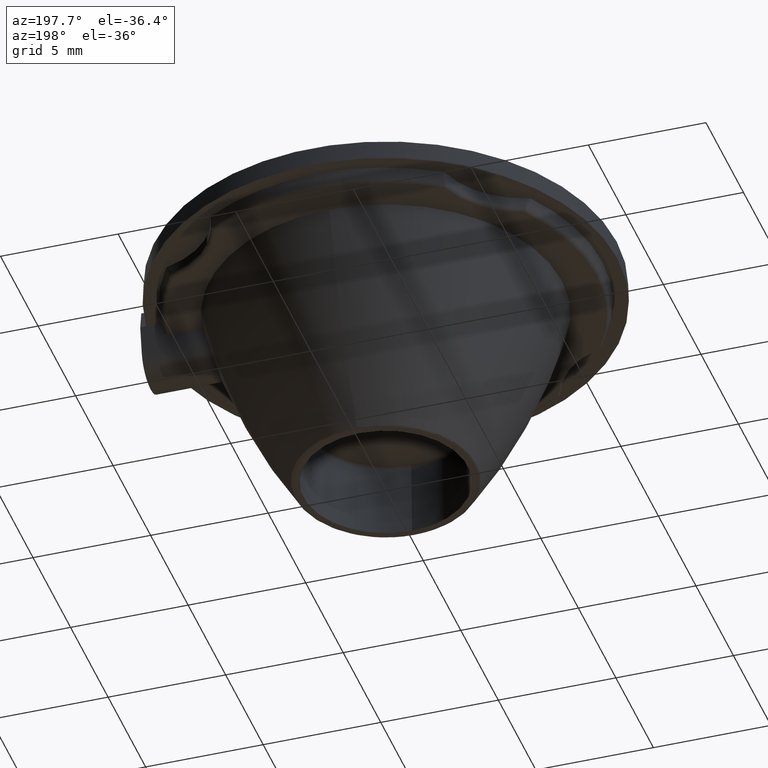
[diagram: clean part render]
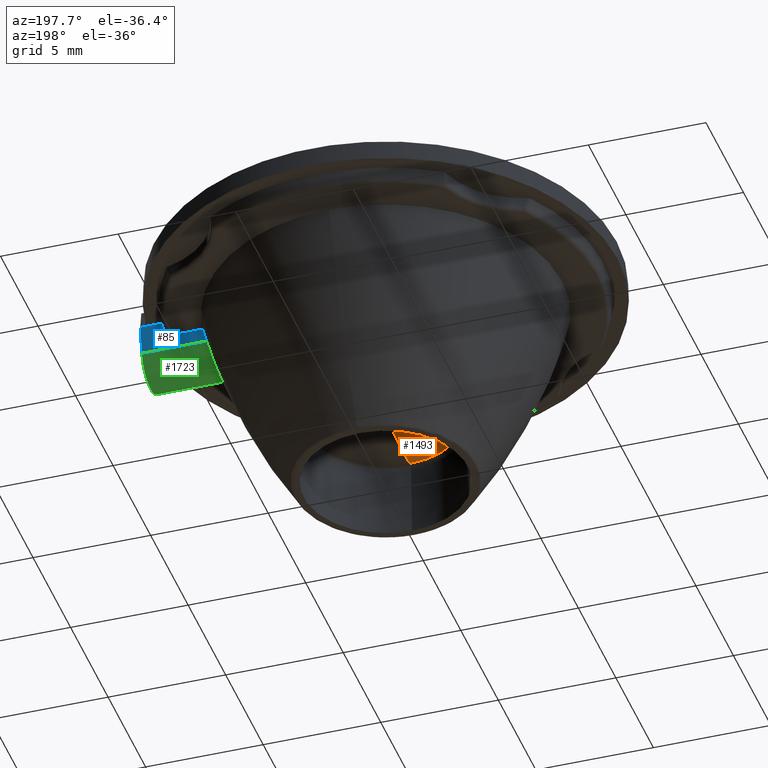
[diagram: same view with three faces highlighted in distinct colors, each labeled with its STEP entity id]
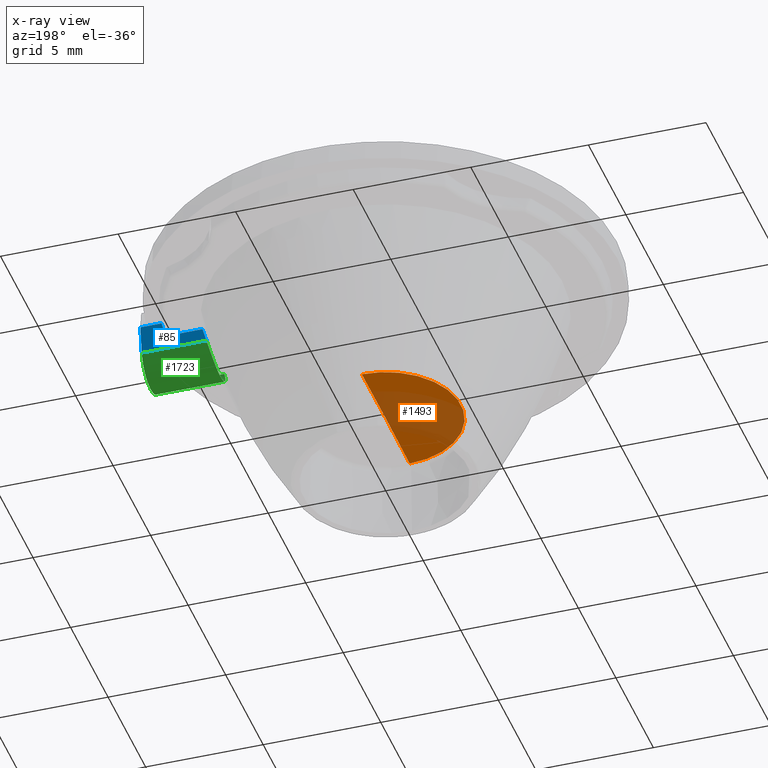
[diagram: x-ray of the same camera — body ghosted, the three highlighted faces saturated]
A machine part, auxiliary view with three faces highlighted in distinct colors.
The next image is the same camera in x-ray (body ghosted, the three faces saturated) — at least one of them is partly hidden behind the body in this view.
Their STEP definitions:

[orange] entity #1493 — the highlighted conical surface has half-angle 89.539 deg.
#5 = VECTOR ( 'NONE', #1677, 999.9999999999998863 ) ;
#27 = DIRECTION ( 'NONE',  ( 2.303001071113049889E-32, 4.680303619844524597E-17, -1.000000000000000000 ) ) ;
#41 = EDGE_CURVE ( 'NONE', #1244, #1558, #1430, .T. ) ;
#58 = AXIS2_PLACEMENT_3D ( 'NONE', #869, #285, #743 ) ;
#285 = DIRECTION ( 'NONE',  ( 0.0000000000000000000, 6.746244544747080605E-19, -1.000000000000000000 ) ) ;
#305 = DIRECTION ( 'NONE',  ( 0.0000000000000000000, -1.000000000000000000, 0.0000000000000000000 ) ) ;
#317 = CARTESIAN_POINT ( 'NONE',  ( 0.0000000000000000000, -3.339391049649804403E-18, 4.950000000000000178 ) ) ;
#374 = CARTESIAN_POINT ( 'NONE',  ( 4.150587849886201446E-16, -3.389212181647804467, 4.922731802737126294 ) ) ;
#417 = CONICAL_SURFACE ( 'NONE', #58, 3.389212181647804467, 1.562750914629971843 ) ;
#537 = VERTEX_POINT ( 'NONE', #1339 ) ;
#601 = EDGE_CURVE ( 'NONE', #1244, #537, #931, .T. ) ;
#743 = DIRECTION ( 'NONE',  ( 0.0000000000000000000, 1.000000000000000000, 0.0000000000000000000 ) ) ;
#827 = ORIENTED_EDGE ( 'NONE', *, *, #1625, .T. ) ;
#841 = EDGE_LOOP ( 'NONE', ( #1850, #1603, #827 ) ) ;
#869 = CARTESIAN_POINT ( 'NONE',  ( 0.0000000000000000000, -3.320995256946829210E-18, 4.922731802737126294 ) ) ;
#931 = LINE ( 'NONE', #1519, #5 ) ;
#974 = DIRECTION ( 'NONE',  ( 1.224607164489900314E-16, -0.9999676358461229153, -0.008045325370418403288 ) ) ;
#1217 = CARTESIAN_POINT ( 'NONE',  ( 0.0000000000000000000, -3.322035120012010268E-18, 4.924273198188008571 ) ) ;
#1244 = VERTEX_POINT ( 'NONE', #317 ) ;
#1339 = CARTESIAN_POINT ( 'NONE',  ( 0.0000000000000000000, 3.197629430925267524, 4.924273198188008571 ) ) ;
#1378 = AXIS2_PLACEMENT_3D ( 'NONE', #1217, #27, #305 ) ;
#1430 = LINE ( 'NONE', #374, #1696 ) ;
#1493 = ADVANCED_FACE ( 'NONE', ( #1604 ), #417, .F. ) ;
#1519 = CARTESIAN_POINT ( 'NONE',  ( 0.0000000000000000000, 3.389212181647804467, 4.922731802737126294 ) ) ;
#1558 = VERTEX_POINT ( 'NONE', #1922 ) ;
#1603 = ORIENTED_EDGE ( 'NONE', *, *, #41, .T. ) ;
#1604 = FACE_OUTER_BOUND ( 'NONE', #841, .T. ) ;
#1625 = EDGE_CURVE ( 'NONE', #1558, #537, #1924, .T. ) ;
#1677 = DIRECTION ( 'NONE',  ( 0.0000000000000000000, 0.9999676358461229153, -0.008045325370418403288 ) ) ;
#1696 = VECTOR ( 'NONE', #974, 999.9999999999998863 ) ;
#1850 = ORIENTED_EDGE ( 'NONE', *, *, #601, .F. ) ;
#1922 = CARTESIAN_POINT ( 'NONE',  ( 3.915966647442046551E-16, -3.197629430925304383, 4.924273198188008571 ) ) ;
#1924 = CIRCLE ( 'NONE', #1378, 3.197629430925219562 ) ;

[blue] entity #85 — the highlighted planar face has unit normal (0, -0.9848, 0.1736).
#39 = VERTEX_POINT ( 'NONE', #530 ) ;
#85 = ADVANCED_FACE ( 'NONE', ( #1184 ), #1316, .F. ) ;
#98 = AXIS2_PLACEMENT_3D ( 'NONE', #1025, #1624, #742 ) ;
#111 = LINE ( 'NONE', #1302, #475 ) ;
#114 = CARTESIAN_POINT ( 'NONE',  ( 8.974102964655450876, 1.298905210407079514, 10.30593292541605877 ) ) ;
#129 = DIRECTION ( 'NONE',  ( -1.000000000000000000, -0.0000000000000000000, -0.0000000000000000000 ) ) ;
#153 = CARTESIAN_POINT ( 'NONE',  ( 10.00000000000000000, 1.386022565935927320, 10.80000000000000426 ) ) ;
#166 = CARTESIAN_POINT ( 'NONE',  ( 7.243942455039078965, 1.181769303614650157, 9.641622186799693850 ) ) ;
#200 = LINE ( 'NONE', #642, #502 ) ;
#210 = DIRECTION ( 'NONE',  ( -1.000000000000000000, -0.0000000000000000000, -0.0000000000000000000 ) ) ;
#226 = B_SPLINE_CURVE_WITH_KNOTS ( 'NONE', 3,
 ( #867, #577, #311, #910, #114, #1762 ),
 .UNSPECIFIED., .F., .F.,
 ( 4, 2, 4 ),
 ( 0.0000000000000000000, 0.0001307121196724513696, 0.0002614242393449027393 ),
 .UNSPECIFIED. ) ;
#254 = ORIENTED_EDGE ( 'NONE', *, *, #1906, .F. ) ;
#273 = VERTEX_POINT ( 'NONE', #1395 ) ;
#311 = CARTESIAN_POINT ( 'NONE',  ( 8.880242442453390339, 1.282769764489593234, 10.21442426433278783 ) ) ;
#313 = CARTESIAN_POINT ( 'NONE',  ( 8.793056442597512401, 1.280226377510851776, 10.20000000000000107 ) ) ;
#327 = EDGE_CURVE ( 'NONE', #1750, #39, #226, .T. ) ;
#358 = ORIENTED_EDGE ( 'NONE', *, *, #593, .T. ) ;
#360 = VERTEX_POINT ( 'NONE', #153 ) ;
#412 = EDGE_CURVE ( 'NONE', #273, #1253, #584, .T. ) ;
#464 = CARTESIAN_POINT ( 'NONE',  ( 9.094995406635254298, 1.386022565935927320, 10.80000000000000071 ) ) ;
#475 = VECTOR ( 'NONE', #828, 1000.000000000000114 ) ;
#492 = CARTESIAN_POINT ( 'NONE',  ( 7.292879793850644887, 1.214505210951699388, 9.827276742928997777 ) ) ;
#502 = VECTOR ( 'NONE', #801, 1000.000000000000000 ) ;
#523 = EDGE_LOOP ( 'NONE', ( #833, #254, #358, #583, #1882, #1586, #1115, #526 ) ) ;
#526 = ORIENTED_EDGE ( 'NONE', *, *, #752, .F. ) ;
#530 = CARTESIAN_POINT ( 'NONE',  ( 8.984472699645671412, 1.306364417497988706, 10.34823619097949710 ) ) ;
#558 = EDGE_CURVE ( 'NONE', #1620, #39, #1817, .T. ) ;
#565 = VERTEX_POINT ( 'NONE', #1206 ) ;
#577 = CARTESIAN_POINT ( 'NONE',  ( 8.837243274091337142, 1.280226377510851554, 10.19999999999999929 ) ) ;
#583 = ORIENTED_EDGE ( 'NONE', *, *, #327, .T. ) ;
#584 = LINE ( 'NONE', #617, #979 ) ;
#593 = EDGE_CURVE ( 'NONE', #1120, #1750, #200, .T. ) ;
#617 = CARTESIAN_POINT ( 'NONE',  ( 10.00000000000000000, 1.181769303614649935, 9.641622186799692074 ) ) ;
#629 = CARTESIAN_POINT ( 'NONE',  ( 9.094995406635254298, 1.386022565935927320, 10.80000000000000071 ) ) ;
#636 = CARTESIAN_POINT ( 'NONE',  ( 7.385107164020463522, 1.280226377510851776, 10.20000000000000107 ) ) ;
#642 = CARTESIAN_POINT ( 'NONE',  ( 10.00000000000000000, 1.280226377510851776, 10.20000000000000107 ) ) ;
#674 = CARTESIAN_POINT ( 'NONE',  ( 10.00000000000000000, 1.386022565935927320, 10.80000000000000426 ) ) ;
#742 = DIRECTION ( 'NONE',  ( 0.0000000000000000000, -0.1736481776669238641, -0.9848077530122092416 ) ) ;
#752 = EDGE_CURVE ( 'NONE', #273, #360, #111, .T. ) ;
#801 = DIRECTION ( 'NONE',  ( 1.000000000000000000, 0.0000000000000000000, 0.0000000000000000000 ) ) ;
#828 = DIRECTION ( 'NONE',  ( -0.0000000000000000000, 0.1736481776669238641, 0.9848077530122092416 ) ) ;
#833 = ORIENTED_EDGE ( 'NONE', *, *, #412, .T. ) ;
#867 = CARTESIAN_POINT ( 'NONE',  ( 8.793056442597512401, 1.280226377510851776, 10.20000000000000107 ) ) ;
#876 = CARTESIAN_POINT ( 'NONE',  ( 9.058222194534280902, 1.359467020578220442, 10.64939601840280226 ) ) ;
#910 = CARTESIAN_POINT ( 'NONE',  ( 8.949632730319621032, 1.292233984017415516, 10.26809852047780147 ) ) ;
#915 = CARTESIAN_POINT ( 'NONE',  ( 7.243942455039078965, 1.181769303614650157, 9.641622186799693850 ) ) ;
#979 = VECTOR ( 'NONE', #1350, 1000.000000000000000 ) ;
#1025 = CARTESIAN_POINT ( 'NONE',  ( 10.00000000000000000, 1.386022565935927320, 10.80000000000000426 ) ) ;
#1030 = CARTESIAN_POINT ( 'NONE',  ( 7.385107164020463522, 1.280226377510851776, 10.20000000000000107 ) ) ;
#1066 = EDGE_CURVE ( 'NONE', #360, #565, #1465, .T. ) ;
#1082 = LINE ( 'NONE', #1549, #1596 ) ;
#1115 = ORIENTED_EDGE ( 'NONE', *, *, #1066, .F. ) ;
#1120 = VERTEX_POINT ( 'NONE', #1030 ) ;
#1170 = VECTOR ( 'NONE', #129, 1000.000000000000000 ) ;
#1184 = FACE_OUTER_BOUND ( 'NONE', #523, .T. ) ;
#1206 = CARTESIAN_POINT ( 'NONE',  ( 9.751996792796662206, 1.386022565935927320, 10.80000000000000426 ) ) ;
#1253 = VERTEX_POINT ( 'NONE', #915 ) ;
#1302 = CARTESIAN_POINT ( 'NONE',  ( 10.00000000000000000, 1.386022565935927320, 10.80000000000000426 ) ) ;
#1314 = CARTESIAN_POINT ( 'NONE',  ( 9.021382102844658135, 1.332914264945655569, 10.49880785812307948 ) ) ;
#1316 = PLANE ( 'NONE',  #98 ) ;
#1350 = DIRECTION ( 'NONE',  ( -1.000000000000000000, -0.0000000000000000000, -0.0000000000000000000 ) ) ;
#1360 = EDGE_CURVE ( 'NONE', #565, #1620, #1082, .T. ) ;
#1395 = CARTESIAN_POINT ( 'NONE',  ( 10.00000000000000000, 1.181769303614649935, 9.641622186799692074 ) ) ;
#1465 = LINE ( 'NONE', #674, #1170 ) ;
#1549 = CARTESIAN_POINT ( 'NONE',  ( 10.00000000000000000, 1.386022565935927320, 10.80000000000000426 ) ) ;
#1586 = ORIENTED_EDGE ( 'NONE', *, *, #1360, .F. ) ;
#1596 = VECTOR ( 'NONE', #210, 1000.000000000000000 ) ;
#1618 = B_SPLINE_CURVE_WITH_KNOTS ( 'NONE', 3,
 ( #636, #1819, #492, #166 ),
 .UNSPECIFIED., .F., .F.,
 ( 4, 4 ),
 ( 2.087661750378304545E-07, 0.0005845092477222960017 ),
 .UNSPECIFIED. ) ;
#1620 = VERTEX_POINT ( 'NONE', #629 ) ;
#1624 = DIRECTION ( 'NONE',  ( 0.0000000000000000000, -0.9848077530122092416, 0.1736481776669238641 ) ) ;
#1750 = VERTEX_POINT ( 'NONE', #313 ) ;
#1762 = CARTESIAN_POINT ( 'NONE',  ( 8.984472699645671412, 1.306364417497988706, 10.34823619097949710 ) ) ;
#1817 = B_SPLINE_CURVE_WITH_KNOTS ( 'NONE', 3,
 ( #464, #876, #1314, #1918 ),
 .UNSPECIFIED., .F., .F.,
 ( 4, 4 ),
 ( 2.088741709890863839E-07, 0.0004720682003076301500 ),
 .UNSPECIFIED. ) ;
#1819 = CARTESIAN_POINT ( 'NONE',  ( 7.339940350016567194, 1.247327459247160597, 10.01342096296603401 ) ) ;
#1882 = ORIENTED_EDGE ( 'NONE', *, *, #558, .F. ) ;
#1906 = EDGE_CURVE ( 'NONE', #1120, #1253, #1618, .T. ) ;
#1918 = CARTESIAN_POINT ( 'NONE',  ( 8.984472699645671412, 1.306364417497988706, 10.34823619097949710 ) ) ;

[green] entity #1723 — the highlighted cylindrical surface (edge-blend (fillet) strip) has radius 1.2 mm, axis along (-1, -0, -0).
#3 = CARTESIAN_POINT ( 'NONE',  ( 7.101542375287600350, 0.8845073915828040034, 9.026863584750284275 ) ) ;
#13 = CARTESIAN_POINT ( 'NONE',  ( 7.123022456665196067, 0.9731993176505892018, 9.134189832098066120 ) ) ;
#75 = ORIENTED_EDGE ( 'NONE', *, *, #1544, .F. ) ;
#96 = ORIENTED_EDGE ( 'NONE', *, *, #412, .F. ) ;
#136 = CARTESIAN_POINT ( 'NONE',  ( 7.067415053027129801, -0.6694472910086370909, 8.844308043356196691 ) ) ;
#150 = CARTESIAN_POINT ( 'NONE',  ( 10.00000000000000000, -1.181769303614652156, 9.641622186799692074 ) ) ;
#165 = CARTESIAN_POINT ( 'NONE',  ( 7.055433514695102382, 0.5477616137713150479, 8.772961307691979016 ) ) ;
#201 = EDGE_CURVE ( 'NONE', #300, #273, #1179, .T. ) ;
#255 = CARTESIAN_POINT ( 'NONE',  ( 10.00000000000000000, -1.181769303614652156, 9.641622186799692074 ) ) ;
#273 = VERTEX_POINT ( 'NONE', #1395 ) ;
#300 = VERTEX_POINT ( 'NONE', #255 ) ;
#315 = CARTESIAN_POINT ( 'NONE',  ( 7.035748966385622083, 0.1420439587463292463, 8.650064799054725029 ) ) ;
#324 = CARTESIAN_POINT ( 'NONE',  ( 7.039492471067078760, -0.2815152728967570961, 8.675002467349045787 ) ) ;
#361 = EDGE_LOOP ( 'NONE', ( #1160, #75, #96, #1874 ) ) ;
#412 = EDGE_CURVE ( 'NONE', #273, #1253, #584, .T. ) ;
#535 = EDGE_CURVE ( 'NONE', #300, #813, #1630, .T. ) ;
#542 = CARTESIAN_POINT ( 'NONE',  ( 10.00000000000000000, -1.084202172485504434E-15, 9.850000000000001421 ) ) ;
#575 = DIRECTION ( 'NONE',  ( -1.000000000000000000, -0.0000000000000000000, -0.0000000000000000000 ) ) ;
#584 = LINE ( 'NONE', #617, #979 ) ;
#604 = FACE_OUTER_BOUND ( 'NONE', #361, .T. ) ;
#606 = CARTESIAN_POINT ( 'NONE',  ( 7.067378881396308543, 0.6694620304117177012, 8.844153354774308085 ) ) ;
#617 = CARTESIAN_POINT ( 'NONE',  ( 10.00000000000000000, 1.181769303614649935, 9.641622186799692074 ) ) ;
#641 = AXIS2_PLACEMENT_3D ( 'NONE', #903, #575, #1059 ) ;
#813 = VERTEX_POINT ( 'NONE', #986 ) ;
#903 = CARTESIAN_POINT ( 'NONE',  ( 10.00000000000000000, -1.084202172485504434E-15, 9.850000000000001421 ) ) ;
#915 = CARTESIAN_POINT ( 'NONE',  ( 7.243942455039078965, 1.181769303614650157, 9.641622186799693850 ) ) ;
#979 = VECTOR ( 'NONE', #1350, 1000.000000000000000 ) ;
#986 = CARTESIAN_POINT ( 'NONE',  ( 7.243942455039086070, -1.181769303614652156, 9.641622186799692074 ) ) ;
#998 = DIRECTION ( 'NONE',  ( 1.000000000000000000, 0.0000000000000000000, -0.0000000000000000000 ) ) ;
#1036 = CARTESIAN_POINT ( 'NONE',  ( 7.039496206437342529, 0.2819953461079365287, 8.675038828291171455 ) ) ;
#1054 = CARTESIAN_POINT ( 'NONE',  ( 7.035729027427197302, -0.1409469845802446275, 8.649935451643688822 ) ) ;
#1059 = DIRECTION ( 'NONE',  ( 0.0000000000000000000, 0.0000000000000000000, 1.000000000000000000 ) ) ;
#1160 = ORIENTED_EDGE ( 'NONE', *, *, #535, .T. ) ;
#1179 = CIRCLE ( 'NONE', #1578, 1.199999999999999734 ) ;
#1185 = CARTESIAN_POINT ( 'NONE',  ( 7.243942455039086070, -1.181769303614652156, 9.641622186799692074 ) ) ;
#1192 = CYLINDRICAL_SURFACE ( 'NONE', #641, 1.199999999999999734 ) ;
#1194 = CARTESIAN_POINT ( 'NONE',  ( 7.118156662174820681, -0.9895696319361675375, 9.115795742359820153 ) ) ;
#1239 = VECTOR ( 'NONE', #1494, 1000.000000000000000 ) ;
#1253 = VERTEX_POINT ( 'NONE', #915 ) ;
#1273 = B_SPLINE_CURVE_WITH_KNOTS ( 'NONE', 3,
 ( #1344, #1784, #1336, #13, #3, #606, #165, #1036, #315, #1054, #324, #1809, #136, #1194, #1933, #1185 ),
 .UNSPECIFIED., .F., .F.,
 ( 4, 2, 2, 2, 2, 2, 2, 4 ),
 ( 2.069209832374852430E-07, 0.0004213371490033119486, 0.0008424673770233864246, 0.001263597605043460846, 0.001684727833063535051, 0.002105858061083609473, 0.002526988289103683245, 0.003369248745143834690 ),
 .UNSPECIFIED. ) ;
#1336 = CARTESIAN_POINT ( 'NONE',  ( 7.177014179282906525, 1.111566987273735929, 9.376798202507062641 ) ) ;
#1344 = CARTESIAN_POINT ( 'NONE',  ( 7.243942455039078965, 1.181769303614650157, 9.641622186799693850 ) ) ;
#1350 = DIRECTION ( 'NONE',  ( -1.000000000000000000, -0.0000000000000000000, -0.0000000000000000000 ) ) ;
#1395 = CARTESIAN_POINT ( 'NONE',  ( 10.00000000000000000, 1.181769303614649935, 9.641622186799692074 ) ) ;
#1494 = DIRECTION ( 'NONE',  ( -1.000000000000000000, -0.0000000000000000000, -0.0000000000000000000 ) ) ;
#1544 = EDGE_CURVE ( 'NONE', #1253, #813, #1273, .T. ) ;
#1578 = AXIS2_PLACEMENT_3D ( 'NONE', #542, #998, #1727 ) ;
#1630 = LINE ( 'NONE', #150, #1239 ) ;
#1723 = ADVANCED_FACE ( 'NONE', ( #604 ), #1192, .T. ) ;
#1727 = DIRECTION ( 'NONE',  ( 0.0000000000000000000, 0.0000000000000000000, 1.000000000000000000 ) ) ;
#1784 = CARTESIAN_POINT ( 'NONE',  ( 7.208178600129309110, 1.157845603046247174, 9.505944138708128932 ) ) ;
#1809 = CARTESIAN_POINT ( 'NONE',  ( 7.055311600074618106, -0.5461430804863260935, 8.772225540176943781 ) ) ;
#1874 = ORIENTED_EDGE ( 'NONE', *, *, #201, .F. ) ;
#1933 = CARTESIAN_POINT ( 'NONE',  ( 7.172403716732738133, -1.133914525135282680, 9.370224251626821044 ) ) ;